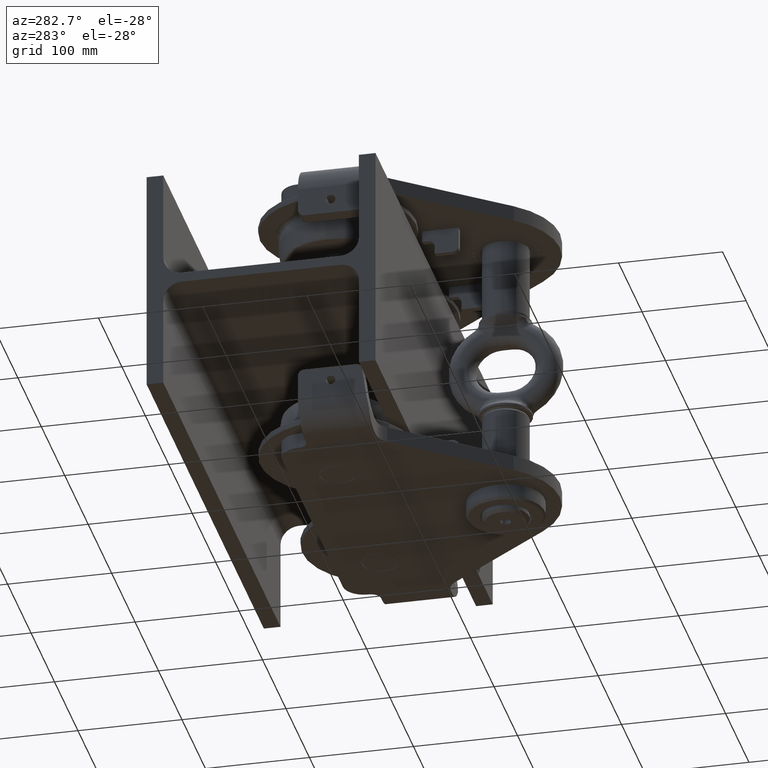
[diagram: clean part render]
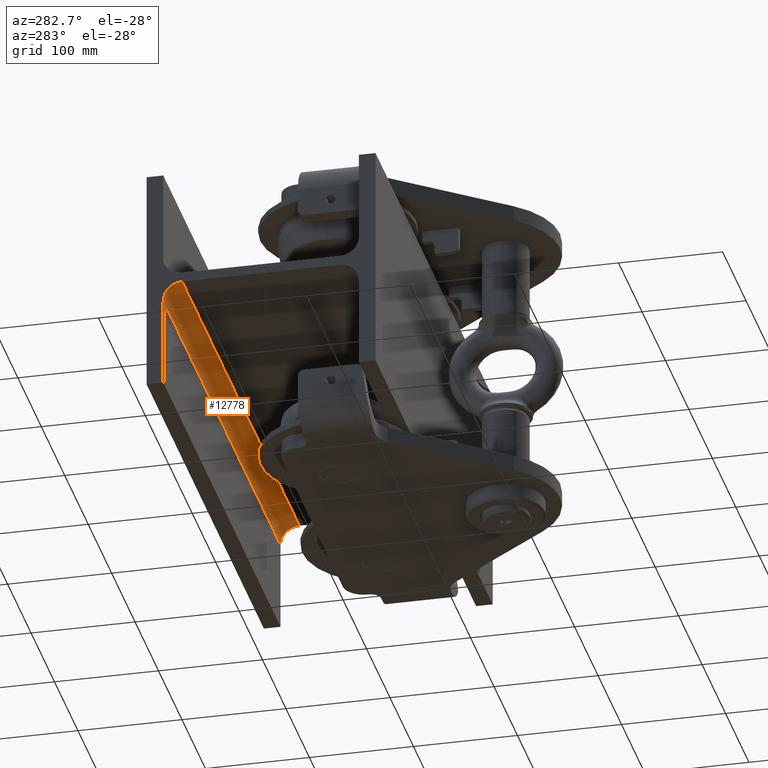
[diagram: same view with one face highlighted and labeled with its STEP entity id]
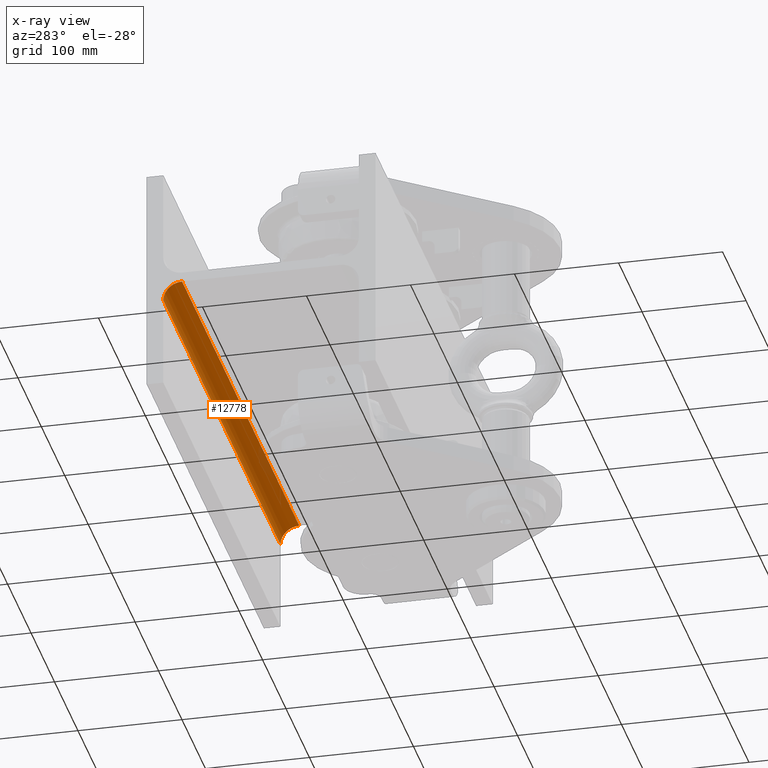
[diagram: x-ray of the same camera — body ghosted, the highlighted face saturated]
A machine part, auxiliary view. The second image highlights one B-rep face of the part: STEP entity #12778.
The next image is the same camera in x-ray: the body ghosted, the highlighted face saturated — about 4% of this face is hidden behind the body in this view.
In plain terms, the highlighted cylindrical surface (edge-blend (fillet) strip) has radius 18 mm, axis along (1, 0, 0).
Its self-contained STEP definition (entity closure, byte-faithful):
#1123 = CARTESIAN_POINT ( 'NONE',  ( 249.9999999999997200, 76.00000000000005700, -22.74999999999991500 ) ) ;
#4411 = DIRECTION ( 'NONE',  ( 0.0000000000000000000, 0.0000000000000000000, -1.000000000000000000 ) ) ;
#7332 = CYLINDRICAL_SURFACE ( 'NONE', #29058, 17.99999999999997500 ) ;
#10534 = ORIENTED_EDGE ( 'NONE', *, *, #19832, .T. ) ;
#11009 = EDGE_LOOP ( 'NONE', ( #27602, #36964, #22781, #10534 ) ) ;
#12778 = ADVANCED_FACE ( 'NONE', ( #25628 ), #7332, .F. ) ;
#13944 = EDGE_CURVE ( 'NONE', #14516, #21309, #29746, .T. ) ;
#14516 = VERTEX_POINT ( 'NONE', #26758 ) ;
#14864 = VECTOR ( 'NONE', #37891, 1000.000000000000000 ) ;
#15124 = EDGE_CURVE ( 'NONE', #21309, #32557, #37843, .T. ) ;
#16080 = AXIS2_PLACEMENT_3D ( 'NONE', #1123, #36845, #4411 ) ;
#17921 = DIRECTION ( 'NONE',  ( 1.000000000000000000, 0.0000000000000000000, 7.703719777548941700E-034 ) ) ;
#19832 = EDGE_CURVE ( 'NONE', #14516, #32478, #40792, .T. ) ;
#21309 = VERTEX_POINT ( 'NONE', #34360 ) ;
#22781 = ORIENTED_EDGE ( 'NONE', *, *, #13944, .F. ) ;
#24105 = DIRECTION ( 'NONE',  ( 1.000000000000000000, 0.0000000000000000000, 7.703719777548941700E-034 ) ) ;
#24522 = CARTESIAN_POINT ( 'NONE',  ( -250.0000000000004000, 76.00000000000005700, -22.74999999999991500 ) ) ;
#24770 = CARTESIAN_POINT ( 'NONE',  ( -250.0000000000004000, 94.00000000000007100, -22.74999999999990800 ) ) ;
#25628 = FACE_OUTER_BOUND ( 'NONE', #11009, .T. ) ;
#25638 = CARTESIAN_POINT ( 'NONE',  ( 249.9999999999997200, 76.00000000000005700, -4.749999999999940500 ) ) ;
#26018 = DIRECTION ( 'NONE',  ( 1.000000000000000000, 0.0000000000000000000, 7.703719777548941700E-034 ) ) ;
#26639 = CIRCLE ( 'NONE', #16080, 17.99999999999997500 ) ;
#26758 = CARTESIAN_POINT ( 'NONE',  ( -250.0000000000004000, 94.00000000000007100, -22.74999999999990800 ) ) ;
#27602 = ORIENTED_EDGE ( 'NONE', *, *, #35131, .T. ) ;
#28928 = CARTESIAN_POINT ( 'NONE',  ( -250.0000000000004000, 76.00000000000005700, -22.74999999999991500 ) ) ;
#29058 = AXIS2_PLACEMENT_3D ( 'NONE', #24522, #24105, #36950 ) ;
#29475 = DIRECTION ( 'NONE',  ( 0.0000000000000000000, 0.0000000000000000000, -1.000000000000000000 ) ) ;
#29746 = CIRCLE ( 'NONE', #30377, 17.99999999999997500 ) ;
#30377 = AXIS2_PLACEMENT_3D ( 'NONE', #28928, #26018, #29475 ) ;
#32478 = VERTEX_POINT ( 'NONE', #34377 ) ;
#32557 = VERTEX_POINT ( 'NONE', #25638 ) ;
#34264 = VECTOR ( 'NONE', #17921, 1000.000000000000000 ) ;
#34360 = CARTESIAN_POINT ( 'NONE',  ( -250.0000000000004000, 76.00000000000005700, -4.749999999999940500 ) ) ;
#34377 = CARTESIAN_POINT ( 'NONE',  ( 249.9999999999997200, 94.00000000000007100, -22.74999999999990800 ) ) ;
#35131 = EDGE_CURVE ( 'NONE', #32478, #32557, #26639, .T. ) ;
#36845 = DIRECTION ( 'NONE',  ( 1.000000000000000000, 0.0000000000000000000, 7.703719777548941700E-034 ) ) ;
#36950 = DIRECTION ( 'NONE',  ( 0.0000000000000000000, 0.0000000000000000000, -1.000000000000000000 ) ) ;
#36964 = ORIENTED_EDGE ( 'NONE', *, *, #15124, .F. ) ;
#37398 = CARTESIAN_POINT ( 'NONE',  ( -250.0000000000004000, 76.00000000000005700, -4.749999999999940500 ) ) ;
#37843 = LINE ( 'NONE', #37398, #34264 ) ;
#37891 = DIRECTION ( 'NONE',  ( 1.000000000000000000, 0.0000000000000000000, 7.703719777548941700E-034 ) ) ;
#40792 = LINE ( 'NONE', #24770, #14864 ) ;